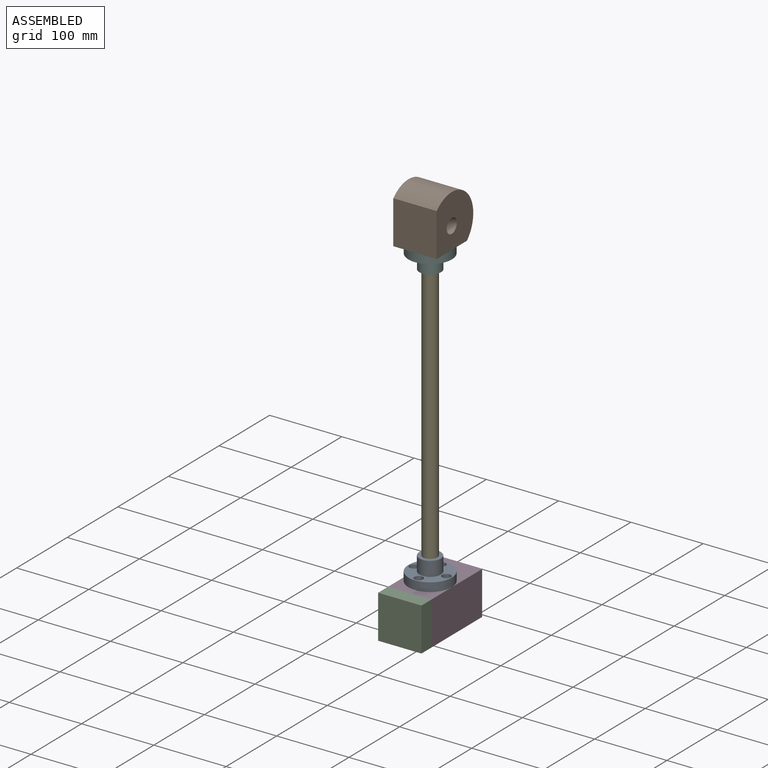
[diagram: assembled view]
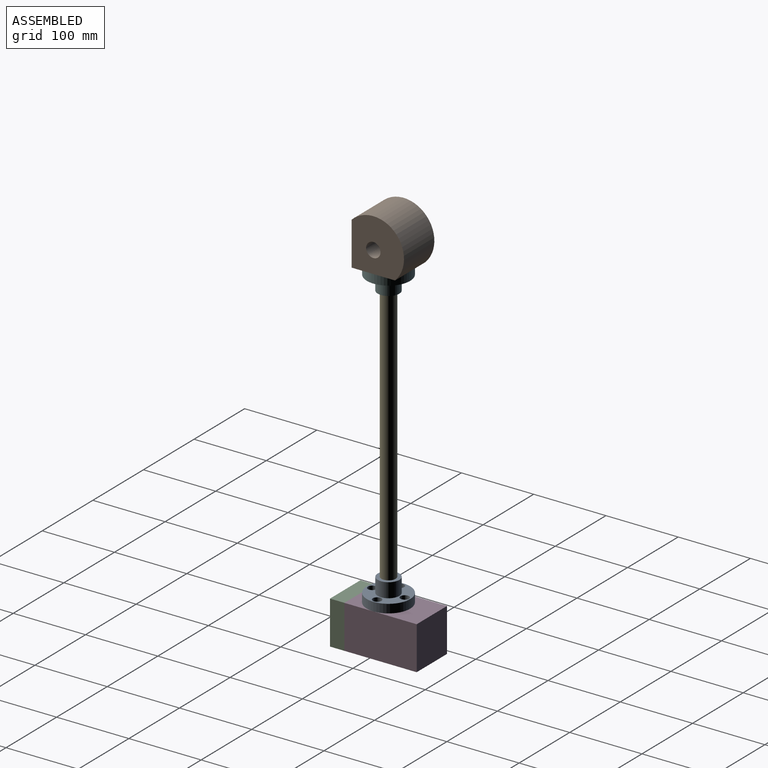
[diagram: assembled view, second angle]
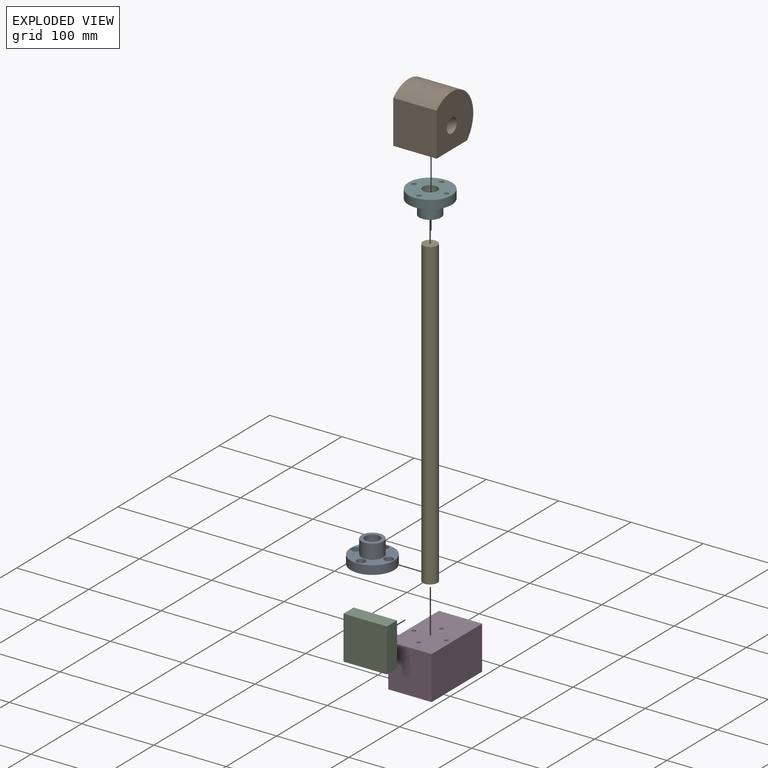
[diagram: exploded view]
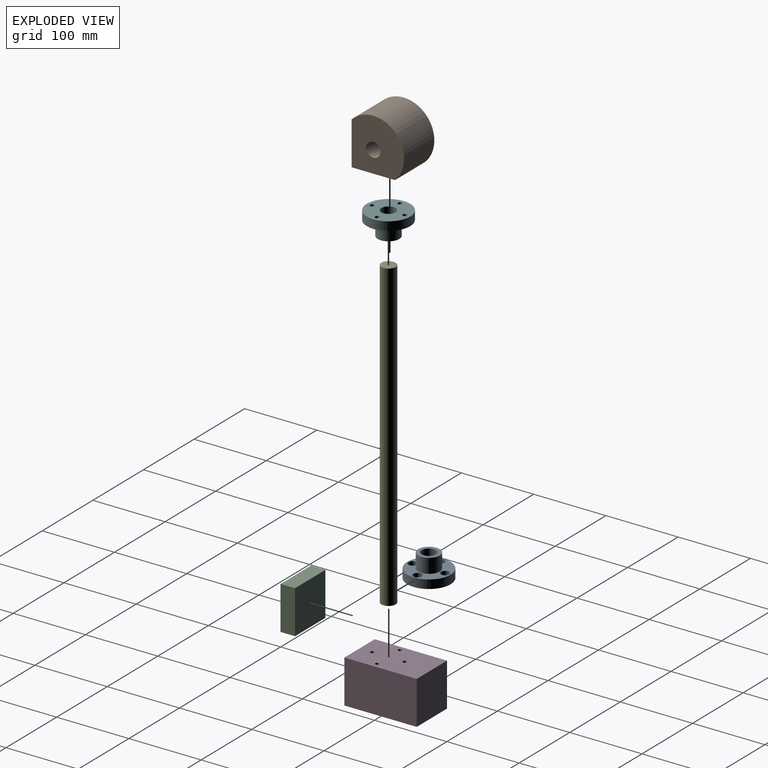
[diagram: exploded view, second angle]
ASSEMBLY  parts=6 mates=5
PART A: 18 faces, bbox 60x60x32 mm
  f0: cylinder r=3mm len=6mm, axis (0,0,1), area 113.1mm2, adj f6,f11
  f1: cylinder r=3mm len=6mm, axis (0,0,1), area 113.1mm2, adj f6,f13
  f2: cylinder r=3mm len=6mm, axis (0,0,1), area 113.1mm2, adj f6,f15
  f3: cylinder r=3mm len=6mm, axis (0,0,1), area 113.1mm2, adj f6,f9
  f4: cylinder r=10mm len=32mm, axis (0,0,1), area 2010.6mm2, adj f6,f17
  f5: cylinder r=30mm len=60mm, axis (0,0,1), area 2261.9mm2, adj f6,f7
  f6: plane 60x60mm, normal (0,0,-1), area 2400.2mm2, adj f0,f1,f2,f3,f4,f5
  f7: plane 60x60mm, normal (0,0,1), area 1668.2mm2, adj f5,f8,f10,f12,f14,f16
  f8: cylinder r=6mm len=12mm, axis (0,0,1), area 226.2mm2, adj f7,f9
  f9: plane 12x12mm, normal (0,0,1), area 84.8mm2, adj f3,f8
  f10: cylinder r=6mm len=12mm, axis (0,0,1), area 226.2mm2, adj f7,f11
  f11: plane 12x12mm, normal (0,0,1), area 84.8mm2, adj f0,f10
  f12: cylinder r=6mm len=12mm, axis (0,0,1), area 226.2mm2, adj f7,f13
  f13: plane 12x12mm, normal (0,0,1), area 84.8mm2, adj f1,f12
  f14: cylinder r=6mm len=12mm, axis (0,0,1), area 226.2mm2, adj f7,f15
  f15: plane 12x12mm, normal (0,0,1), area 84.8mm2, adj f2,f14
  f16: cylinder r=15mm len=30mm, axis (0,0,-1), area 1885mm2, adj f7,f17
  f17: plane 30x30mm, normal (0,0,1), area 392.7mm2, adj f4,f16
PART B: 14 faces, bbox 72.4x60x72.4 mm
  f0: plane 60x60mm, normal (-1,0,0), area 3600mm2, adj f1,f3,f4,f5
  f1: plane 60x60mm, normal (0,0,-1), area 3515.1mm2, adj f0,f3,f4,f5,f6,f8,f10,f12
  f2: cylinder r=10mm len=60mm, axis (0,-1,0), area 3769.9mm2, adj f4,f5
  f3: cylinder r=42.43mm len=72.43mm, axis (0,-1,0), area 7997.2mm2, adj f0,f1,f4,f5
  f4: plane 72.43x72.43mm, normal (0,1,0), area 4313.3mm2, adj f0,f1,f2,f3
  f5: plane 72.43x72.43mm, normal (0,-1,0), area 4313.3mm2, adj f0,f1,f2,f3
  f6: cylinder r=2.6mm len=15mm, axis (0,0,-1), area 245mm2, adj f1,f7
  f7: plane 5.2x5.2mm, normal (0,0,-1), area 21.2mm2, adj f6
  f8: cylinder r=2.6mm len=15mm, axis (0,0,-1), area 245mm2, adj f1,f9
  f9: plane 5.2x5.2mm, normal (0,0,-1), area 21.2mm2, adj f8
  f10: cylinder r=2.6mm len=15mm, axis (0,0,-1), area 245mm2, adj f1,f11
  f11: plane 5.2x5.2mm, normal (0,0,-1), area 21.2mm2, adj f10
  f12: cylinder r=2.6mm len=15mm, axis (0,0,-1), area 245mm2, adj f1,f13
  f13: plane 5.2x5.2mm, normal (0,0,-1), area 21.2mm2, adj f12
PART C: 6 faces, bbox 60x20x60 mm
  f0: plane 60x20mm, normal (0,0,1), area 1200mm2, adj f1,f3,f4,f5
  f1: plane 60x20mm, normal (-1,0,0), area 1200mm2, adj f0,f2,f4,f5
  f2: plane 60x20mm, normal (0,0,-1), area 1200mm2, adj f1,f3,f4,f5
  f3: plane 60x20mm, normal (1,0,0), area 1200mm2, adj f0,f2,f4,f5
  f4: plane 60x60mm, normal (0,-1,0), area 3600mm2, adj f0,f1,f2,f3
  f5: plane 60x60mm, normal (0,1,0), area 3600mm2, adj f0,f1,f2,f3
PART D: 14 faces, bbox 60x100x60 mm
  f0: plane 100x60mm, normal (0,0,1), area 5915.1mm2, adj f1,f3,f4,f5,f6,f8,f10,f12
  f1: plane 100x60mm, normal (-1,0,0), area 6000mm2, adj f0,f2,f4,f5
  f2: plane 100x60mm, normal (0,0,-1), area 6000mm2, adj f1,f3,f4,f5
  f3: plane 100x60mm, normal (1,0,0), area 6000mm2, adj f0,f2,f4,f5
  f4: plane 60x60mm, normal (0,1,0), area 3600mm2, adj f0,f1,f2,f3
  f5: plane 60x60mm, normal (0,-1,0), area 3600mm2, adj f0,f1,f2,f3
  f6: cylinder r=2.6mm len=15mm, axis (0,0,1), area 245mm2, adj f0,f7
  f7: plane 5.2x5.2mm, normal (0,0,1), area 21.2mm2, adj f6
  f8: cylinder r=2.6mm len=15mm, axis (0,0,1), area 245mm2, adj f0,f9
  f9: plane 5.2x5.2mm, normal (0,0,1), area 21.2mm2, adj f8
  f10: cylinder r=2.6mm len=15mm, axis (0,0,1), area 245mm2, adj f0,f11
  f11: plane 5.2x5.2mm, normal (0,0,1), area 21.2mm2, adj f10
  f12: cylinder r=2.6mm len=15mm, axis (0,0,1), area 245mm2, adj f0,f13
  f13: plane 5.2x5.2mm, normal (0,0,1), area 21.2mm2, adj f12
PART E: 3 faces, bbox 20x20x422 mm
  f0: cylinder r=10mm len=422mm, axis (0,0,1), area 26515mm2, adj f1,f2
  f1: plane 20x20mm, normal (0,0,-1), area 314.2mm2, adj f0
  f2: plane 20x20mm, normal (0,0,1), area 314.2mm2, adj f0
PART F: same geometry as A
PLACE A t=(255.05,-40,-7.83)mm
PLACE B rot(axis=(0,0,1),90deg) t=(202.38,0,49.11)mm
PLACE C t=(84.5,-40,-19.83)mm
PLACE D t=(172.38,-40,-19.83)mm
PLACE E t=(334.75,-40,-7.83)mm
PLACE F rot(axis=(0.71,-0.71,0),180deg) t=(212.38,-82.66,450.17)mm
MATE fastened C.f5 <-> D.f5  axis (0,1,0) through (172.38,-40,-19.83)mm
MATE fastened F.f4 <-> E.f0  axis (0,0,1) through (172.38,0,432.17)mm
MATE fastened F.f0 <-> B.f12  axis (0,0,1) through (194.88,0,432.17)mm
MATE fastened A.f1 <-> D.f6  axis (0,0,-1) through (194.88,0,10.17)mm
MATE fastened E.f0 <-> A.f4  axis (0,0,-1) through (172.38,0,10.17)mm
